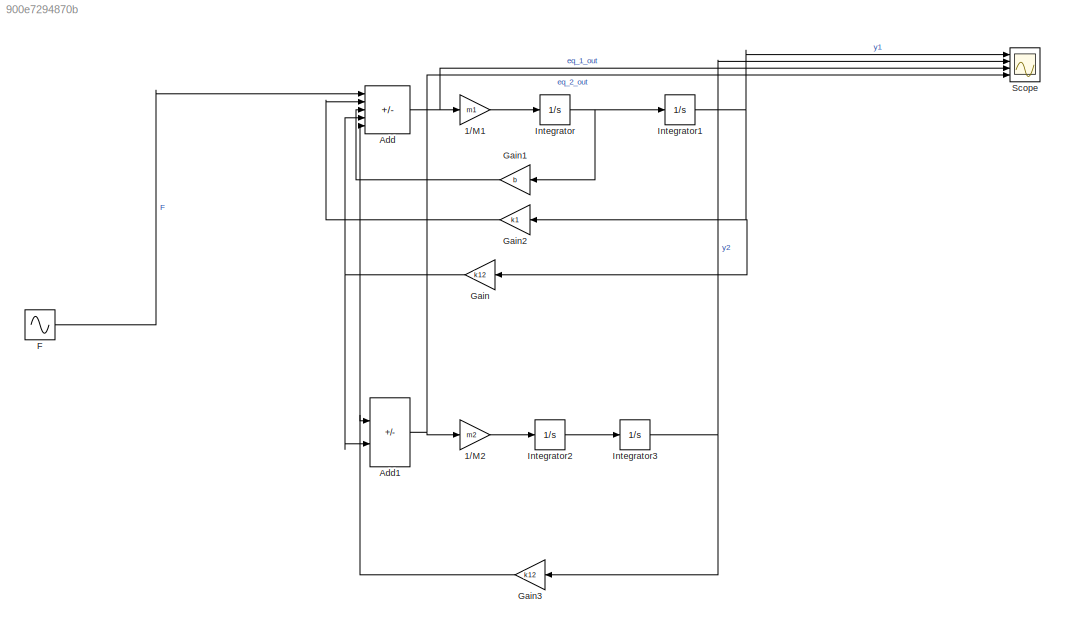
MODEL slx_900e7294870b
KIND model
CONFIG AbsTol = auto
CONFIG EnableMultiTasking = off
CONFIG FixedStep = auto
CONFIG MaxStep = auto
CONFIG MinStep = auto
CONFIG RelTol = 1e-3
CONFIG SampleTimeConstraint = Unconstrained
CONFIG Solver = VariableStepAuto
CONFIG SolverName = VariableStepAuto
CONFIG StartTime = 0.0
CONFIG StopTime = 10.0
BLOCK [Gain] 1//M1
  Gain = m1
BLOCK [Gain] 1//M2
  Gain = m2
BLOCK [Sum] Add
  IconShape = rectangular
  Inputs = +---+
  Ports = [5, 1]
BLOCK [Sum] Add1
  IconShape = rectangular
  Inputs = -+
  Ports = [2, 1]
BLOCK [Sin] F
  Amplitude = 2
  Frequency = 10
  Ports = [0, 1]
  SampleTime = 0
BLOCK [Gain] Gain
  Gain = k12
  NameLocation = top
BLOCK [Gain] Gain1
  Gain = b
  NameLocation = top
BLOCK [Gain] Gain2
  Gain = k1
  NameLocation = top
BLOCK [Gain] Gain3
  Gain = k12
  NameLocation = top
BLOCK [Integrator] Integrator
  Ports = [1, 1]
BLOCK [Integrator] Integrator1
  Ports = [1, 1]
BLOCK [Integrator] Integrator2
  Ports = [1, 1]
BLOCK [Integrator] Integrator3
  Ports = [1, 1]
BLOCK [Scope] Scope
  Floating = off
  NumInputPorts = 4
  Ports = [4]
  ScopeSpecificationString = Simulink.scopes.TimeScopeBlockCfg('CurrentConfiguration', extmgr.ConfigurationSet(extmgr.Configuration('Core','General UI',true),extmgr.Configuration('Core','Source UI',true),extmgr.Configuration('Sources','WiredSimulink',true),extmgr.Configuration('Visuals','Time Domain',true,'SerializedDisplays',{struct('MinYLimReal','-0.00101','MaxYLimReal','0.00215','YLabelReal','','MinYLimMag','0.00000','MaxY...<+3406ch>
LINE 1//M1:1 -> Integrator:1
LINE 1//M2:1 -> Integrator2:1
NET Add1:1 -> 1//M2:1, Scope:4
NET Add:1 -> 1//M1:1, Scope:3
LINE F:1 -> Add:1
LINE Gain1:1 -> Add:3
LINE Gain2:1 -> Add:2
NET Gain3:1 -> Add1:1, Add:5
NET Gain:1 -> Add1:2, Add:4
NET Integrator1:1 -> Gain2:1, Gain:1, Scope:1
LINE Integrator2:1 -> Integrator3:1
NET Integrator3:1 -> Gain3:1, Scope:2
NET Integrator:1 -> Gain1:1, Integrator1:1
note: NET lines group one-source signal fan-out (src -> all destinations, sorted); 1:1 wires keep LINE
